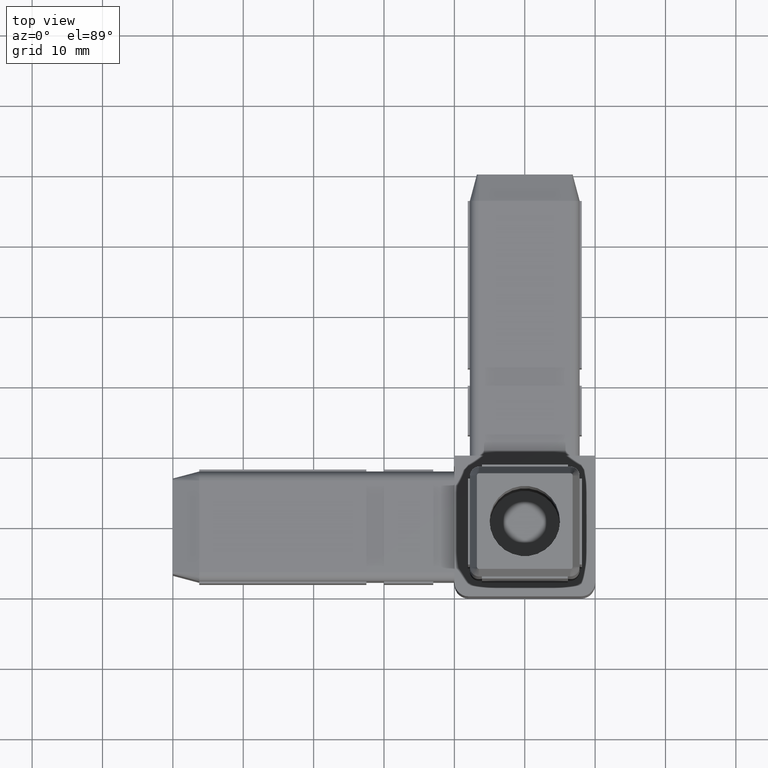
[diagram: clean part render]
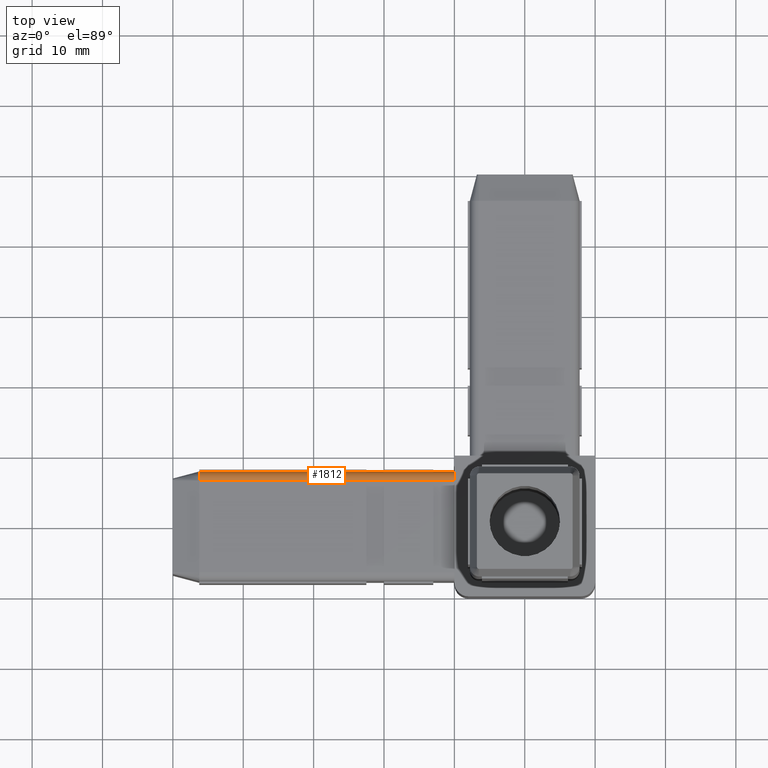
[diagram: same view with one face highlighted and labeled with its STEP entity id]
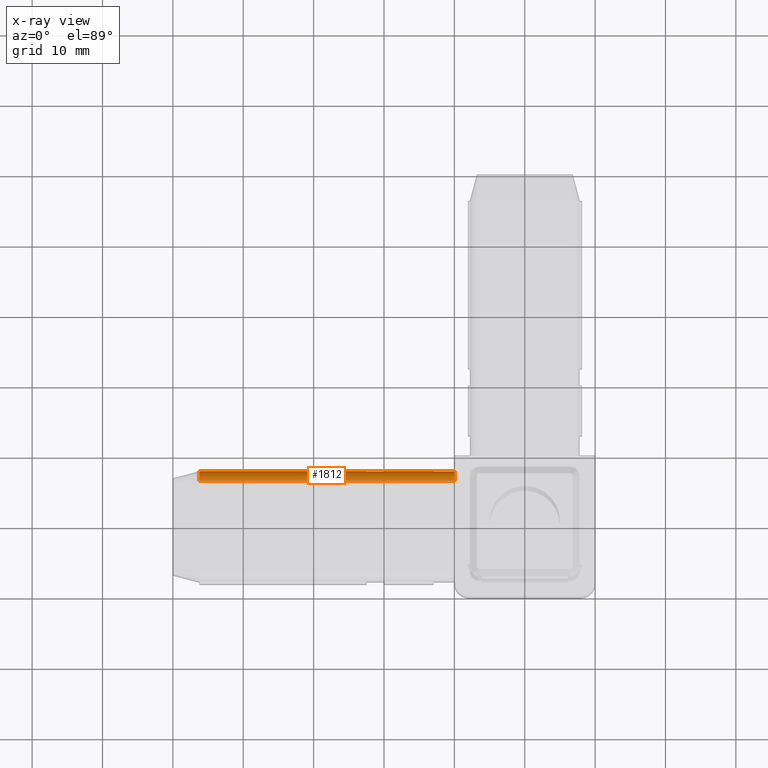
[diagram: x-ray of the same camera — body ghosted, the highlighted face saturated]
A machine part, top view. The second image highlights one B-rep face of the part: STEP entity #1812.
The next image is the same camera in x-ray: the body ghosted, the highlighted face saturated — about 0% of this face is hidden behind the body in this view.
In plain terms, the highlighted cylindrical surface (edge-blend (fillet) strip) has radius 1.3073 mm, axis along (-1, 0, 0).
Its self-contained STEP definition (entity closure, byte-faithful):
#1721=CARTESIAN_POINT('',(-36.250026683031933,-2.200000000000003,6.492702063168962));
#1722=VERTEX_POINT('',#1721);
#1729=CARTESIAN_POINT('',(0.0,-2.200000000000003,6.492702063168962));
#1730=VERTEX_POINT('',#1729);
#1731=CARTESIAN_POINT('',(0.0,-2.200000000000003,6.492702063168962));
#1732=DIRECTION('',(-1.0,0.0,0.0));
#1733=VECTOR('',#1732,36.250026683031933);
#1734=LINE('',#1731,#1733);
#1735=EDGE_CURVE('',#1730,#1722,#1734,.T.);
#1780=CARTESIAN_POINT('',(0.0,-3.507297936831336,6.492702063168962));
#1781=DIRECTION('',(-1.0,0.0,0.0));
#1782=DIRECTION('',(0.0,0.0,1.0));
#1783=AXIS2_PLACEMENT_3D('',#1780,#1781,#1782);
#1784=CYLINDRICAL_SURFACE('',#1783,1.307297936831333);
#1785=ORIENTED_EDGE('',*,*,#1735,.T.);
#1786=CARTESIAN_POINT('',(-36.250026683031933,-3.507297936831336,7.800000000000295));
#1787=VERTEX_POINT('',#1786);
#1788=CARTESIAN_POINT('',(-36.250026683031933,-3.507297936831336,6.492702063168962));
#1789=DIRECTION('',(-1.0,0.0,0.0));
#1790=DIRECTION('',(0.0,0.0,1.0));
#1791=AXIS2_PLACEMENT_3D('',#1788,#1789,#1790);
#1792=CIRCLE('',#1791,1.307297936831333);
#1793=EDGE_CURVE('',#1787,#1722,#1792,.T.);
#1794=ORIENTED_EDGE('',*,*,#1793,.F.);
#1795=CARTESIAN_POINT('',(0.0,-3.507297936831336,7.800000000000295));
#1796=VERTEX_POINT('',#1795);
#1797=CARTESIAN_POINT('',(0.0,-3.507297936831336,7.800000000000295));
#1798=DIRECTION('',(-1.0,0.0,0.0));
#1799=VECTOR('',#1798,36.250026683031933);
#1800=LINE('',#1797,#1799);
#1801=EDGE_CURVE('',#1796,#1787,#1800,.T.);
#1802=ORIENTED_EDGE('',*,*,#1801,.F.);
#1803=CARTESIAN_POINT('',(0.0,-3.507297936831336,6.492702063168962));
#1804=DIRECTION('',(-1.0,0.0,0.0));
#1805=DIRECTION('',(0.0,0.0,1.0));
#1806=AXIS2_PLACEMENT_3D('',#1803,#1804,#1805);
#1807=CIRCLE('',#1806,1.307297936831333);
#1808=EDGE_CURVE('',#1796,#1730,#1807,.T.);
#1809=ORIENTED_EDGE('',*,*,#1808,.T.);
#1810=EDGE_LOOP('',(#1785,#1794,#1802,#1809));
#1811=FACE_OUTER_BOUND('',#1810,.T.);
#1812=ADVANCED_FACE('',(#1811),#1784,.T.);